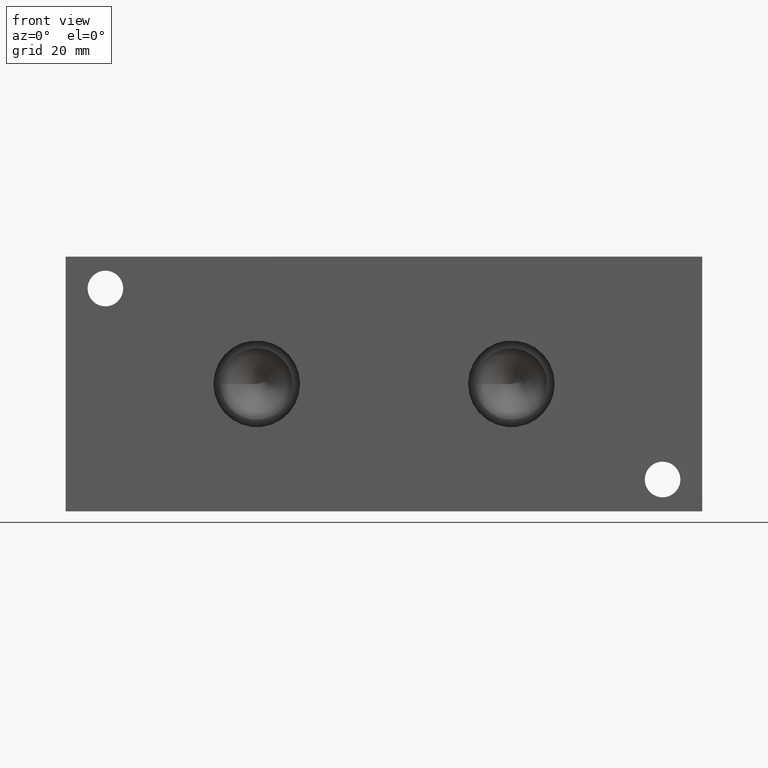
[diagram: clean part render]
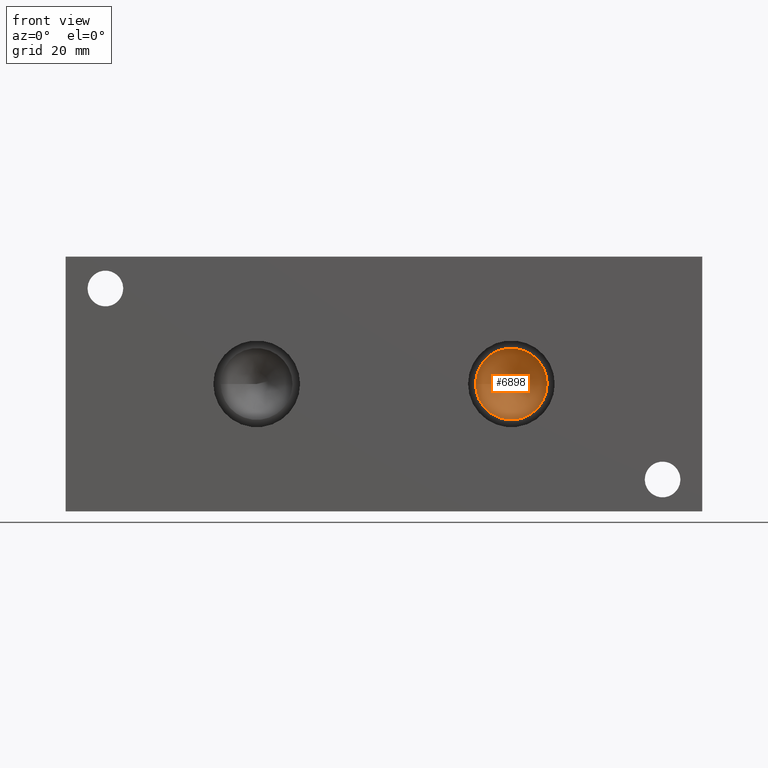
[diagram: same view with one face highlighted and labeled with its STEP entity id]
A machine part, front view. The second image highlights one B-rep face of the part: STEP entity #6898.
In plain terms, the highlighted conical surface has half-angle 60 deg.
Its self-contained STEP definition (entity closure, byte-faithful):
#43=CONICAL_SURFACE('',#7165,3.57505,1.0471975511966);
#63=CIRCLE('',#7166,7.1501);
#64=CIRCLE('',#7167,7.1501);
#680=FACE_OUTER_BOUND('',#1065,.T.);
#1065=EDGE_LOOP('',(#5991,#5992,#5993,#5994));
#1747=LINE('',#11766,#2411);
#2411=VECTOR('',#8323,3.57505);
#3256=VERTEX_POINT('',#11762);
#3257=VERTEX_POINT('',#11763);
#3258=VERTEX_POINT('',#11765);
#4182=EDGE_CURVE('',#3256,#3257,#63,.T.);
#4183=EDGE_CURVE('',#3257,#3258,#1747,.T.);
#4184=EDGE_CURVE('',#3257,#3256,#64,.T.);
#5991=ORIENTED_EDGE('',*,*,#4182,.T.);
#5992=ORIENTED_EDGE('',*,*,#4183,.T.);
#5993=ORIENTED_EDGE('',*,*,#4183,.F.);
#5994=ORIENTED_EDGE('',*,*,#4184,.T.);
#6898=ADVANCED_FACE('',(#680),#43,.F.);
#7165=AXIS2_PLACEMENT_3D('',#11761,#8319,#8320);
#7166=AXIS2_PLACEMENT_3D('',#11764,#8321,#8322);
#7167=AXIS2_PLACEMENT_3D('',#11767,#8324,#8325);
#8319=DIRECTION('center_axis',(0.,-1.,0.));
#8320=DIRECTION('ref_axis',(1.,0.,0.));
#8321=DIRECTION('center_axis',(0.,-1.,0.));
#8322=DIRECTION('ref_axis',(1.,0.,0.));
#8323=DIRECTION('',(0.866025403784439,0.5,1.06057523872491E-16));
#8324=DIRECTION('center_axis',(0.,-1.,0.));
#8325=DIRECTION('ref_axis',(1.,0.,0.));
#11761=CARTESIAN_POINT('Origin',(88.9,14.2116660798664,25.4));
#11762=CARTESIAN_POINT('',(96.0501,12.14761,25.4));
#11763=CARTESIAN_POINT('',(81.7499,12.14761,25.4));
#11764=CARTESIAN_POINT('Origin',(88.9,12.14761,25.4));
#11765=CARTESIAN_POINT('',(88.9,16.2757221597327,25.4));
#11766=CARTESIAN_POINT('',(85.32495,14.2116660798664,25.4));
#11767=CARTESIAN_POINT('Origin',(88.9,12.14761,25.4));